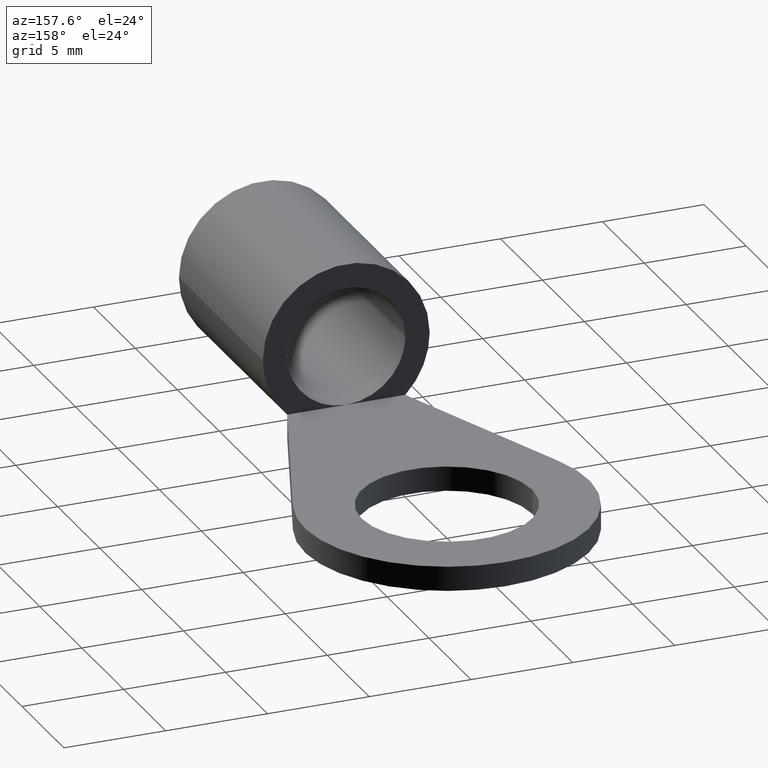
[diagram: clean part render]
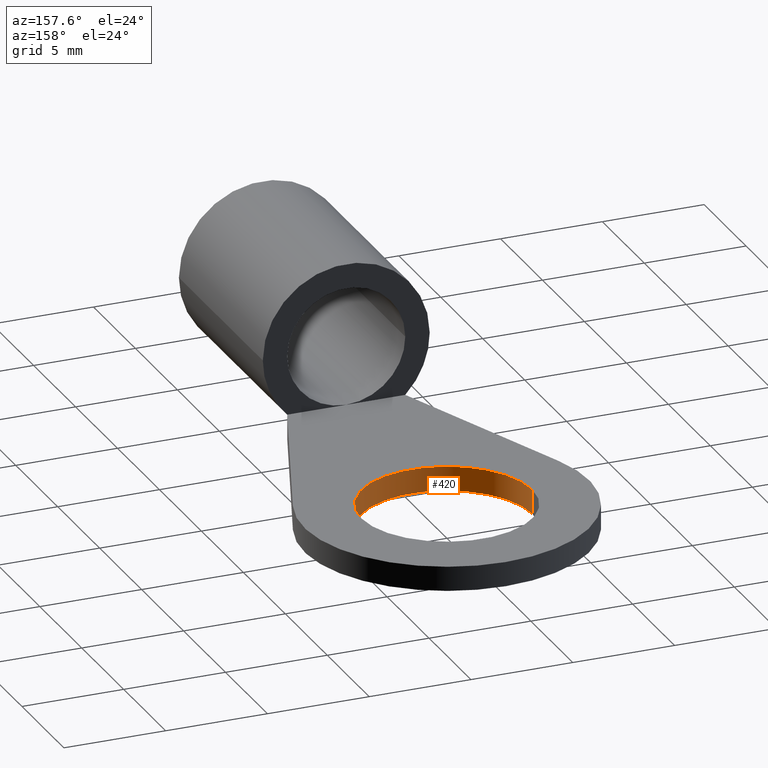
[diagram: same view with one face highlighted and labeled with its STEP entity id]
A machine part, auxiliary view. The second image highlights one B-rep face of the part: STEP entity #420.
In plain terms, the highlighted cylindrical surface (partial cylindrical patch) has radius 4.2 mm, axis along (-0, 0, 1).
Its self-contained STEP definition (entity closure, byte-faithful):
#10=CARTESIAN_POINT('',(7.55918008727245,209.799760805683,
127.490621386443));
#20=DIRECTION('',(-5.91634389396356E-9,0.169437138749457,
-0.985540996616781));
#30=DIRECTION('',(0.150207606047662,0.974359518819137,0.167514784935453)
);
#40=AXIS2_PLACEMENT_3D('',#10,#20,#30);
#50=CYLINDRICAL_SURFACE('',#40,4.2);
#60=CARTESIAN_POINT('',(8.19005203267263,213.892070784723,
128.194183483172));
#70=DIRECTION('',(-5.91634389396356E-9,0.169437138749457,
-0.985540996616781));
#80=VECTOR('',#70,1.);
#90=LINE('',#60,#80);
#100=CARTESIAN_POINT('',(8.19005203267263,213.892070784724,
128.194183483171));
#110=VERTEX_POINT('',#100);
#120=CARTESIAN_POINT('',(8.19005202557302,214.095395351223,
127.011534287231));
#130=VERTEX_POINT('',#120);
#140=EDGE_CURVE('',#110,#130,#90,.T.);
#150=ORIENTED_EDGE('',*,*,#140,.F.);
#160=CARTESIAN_POINT('',(7.55918008017284,210.003085372182,
126.307972190502));
#170=DIRECTION('',(-5.91634389396356E-9,0.169437138749457,
-0.985540996616781));
#180=DIRECTION('',(0.150207606047662,0.974359518819137,0.167514784935453
));
#190=AXIS2_PLACEMENT_3D('',#160,#170,#180);
#200=CIRCLE('',#190,4.2);
#210=CARTESIAN_POINT('',(6.92830813477266,205.910775393142,
125.604410093773));
#220=VERTEX_POINT('',#210);
#230=EDGE_CURVE('',#220,#130,#200,.T.);
#240=ORIENTED_EDGE('',*,*,#230,.T.);
#250=CARTESIAN_POINT('',(6.92830814187227,205.707450826643,
126.787059289714));
#260=DIRECTION('',(-5.91634389396356E-9,0.169437138749457,
-0.985540996616781));
#270=VECTOR('',#260,1.);
#280=LINE('',#250,#270);
#290=CARTESIAN_POINT('',(6.92830814187227,205.707450826643,
126.787059289713));
#300=VERTEX_POINT('',#290);
#310=EDGE_CURVE('',#300,#220,#280,.T.);
#320=ORIENTED_EDGE('',*,*,#310,.T.);
#330=CARTESIAN_POINT('',(7.55918008727245,209.799760805683,
127.490621386442));
#340=DIRECTION('',(-5.91634389396356E-9,0.169437138749457,
-0.985540996616781));
#350=DIRECTION('',(0.150207606047662,0.974359518819137,0.167514784935453
));
#360=AXIS2_PLACEMENT_3D('',#330,#340,#350);
#370=CIRCLE('',#360,4.2);
#380=EDGE_CURVE('',#300,#110,#370,.T.);
#390=ORIENTED_EDGE('',*,*,#380,.F.);
#400=EDGE_LOOP('',(#390,#320,#240,#150));
#410=FACE_OUTER_BOUND('',#400,.T.);
#420=ADVANCED_FACE('',(#410),#50,.F.);